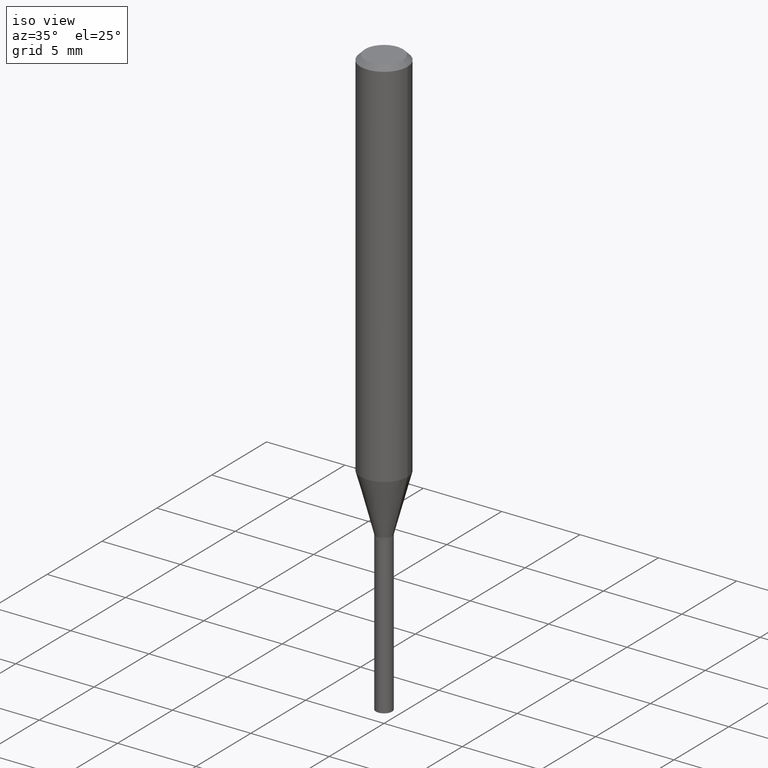
[diagram: clean part render]
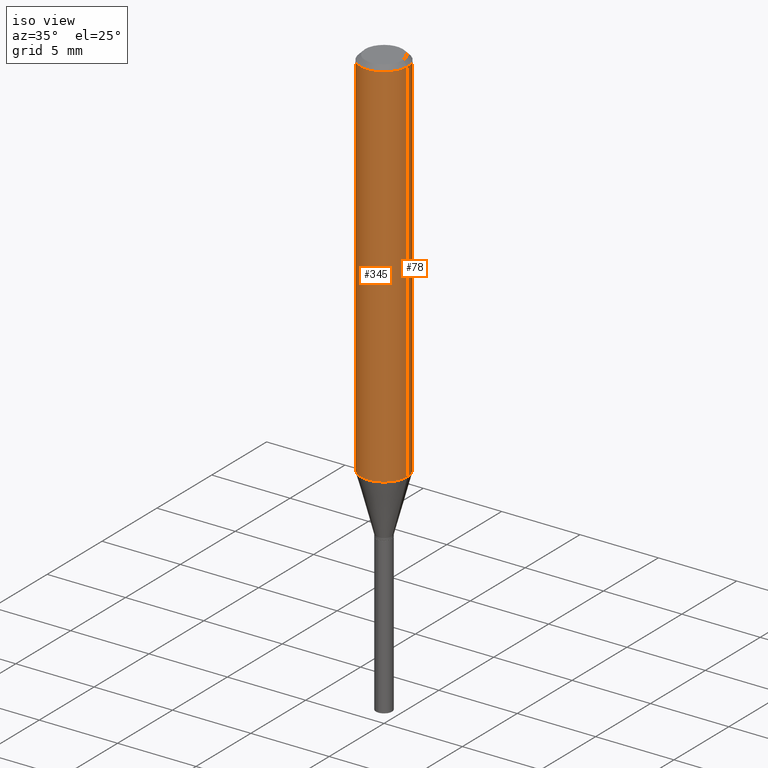
[diagram: same view with one multi-face feature highlighted, each face labeled with its STEP entity id]
A machine part, iso view. The highlighted faces form ONE feature: a constant-radius fillet chain: 2 tangent blend faces with common blend radius 1.4999 mm. The faces share edges in the B-rep.
Their STEP definitions:
[1] entity #78 (Cylinder):
#47 = VECTOR ( 'NONE', #377, 39.37007874015748143 ) ;
#48 = VERTEX_POINT ( 'NONE', #261 ) ;
#55 = AXIS2_PLACEMENT_3D ( 'NONE', #114, #197, #118 ) ;
#69 = VERTEX_POINT ( 'NONE', #449 ) ;
#77 = DIRECTION ( 'NONE',  ( 1.000000000000000000, -6.982962677686267499E-15, 0.000000000000000000 ) ) ;
#78 = ADVANCED_FACE ( 'NONE', ( #359 ), #301, .T. ) ;
#90 = DIRECTION ( 'NONE',  ( 1.000000000000000000, -6.982962677686266711E-15, 0.000000000000000000 ) ) ;
#91 = CARTESIAN_POINT ( 'NONE',  ( -0.05905000000000006771, 4.195754854663396409E-16, -2.904631170795525045E-30 ) ) ;
#114 = CARTESIAN_POINT ( 'NONE',  ( 0.000000000000000000, 0.000000000000000000, 0.000000000000000000 ) ) ;
#117 = ORIENTED_EDGE ( 'NONE', *, *, #136, .F. ) ;
#118 = DIRECTION ( 'NONE',  ( 1.000000000000000000, -6.982962677686266711E-15, 4.876176775795936353E-29 ) ) ;
#119 = CARTESIAN_POINT ( 'NONE',  ( 0.05905000000000000526, -4.535783407291119586E-16, -0.01181000000000007738 ) ) ;
#123 = AXIS2_PLACEMENT_3D ( 'NONE', #179, #210, #90 ) ;
#136 = EDGE_CURVE ( 'NONE', #221, #69, #304, .T. ) ;
#167 = ORIENTED_EDGE ( 'NONE', *, *, #250, .F. ) ;
#179 = CARTESIAN_POINT ( 'NONE',  ( 2.306411186736869099E-29, -3.292943912358867169E-15, -0.9431366210451919141 ) ) ;
#186 = ORIENTED_EDGE ( 'NONE', *, *, #381, .T. ) ;
#197 = DIRECTION ( 'NONE',  ( -2.445468806185136597E-29, 3.491481338843145583E-15, 1.000000000000000000 ) ) ;
#207 = VECTOR ( 'NONE', #248, 39.37007874015748143 ) ;
#210 = DIRECTION ( 'NONE',  ( -2.445468806185136597E-29, 3.491481338843145583E-15, 1.000000000000000000 ) ) ;
#221 = VERTEX_POINT ( 'NONE', #119 ) ;
#248 = DIRECTION ( 'NONE',  ( -2.445468806185136877E-29, 3.491481338843145188E-15, 1.000000000000000000 ) ) ;
#250 = EDGE_CURVE ( 'NONE', #437, #221, #386, .T. ) ;
#261 = CARTESIAN_POINT ( 'NONE',  ( -0.05905000000000011628, -2.873368426892526887E-15, -0.9431366210451919141 ) ) ;
#270 = DIRECTION ( 'NONE',  ( -2.445468806185136597E-29, 3.491481338843145583E-15, 1.000000000000000000 ) ) ;
#272 = CIRCLE ( 'NONE', #123, 0.05905000000000011628 ) ;
#278 = LINE ( 'NONE', #91, #207 ) ;
#283 = CARTESIAN_POINT ( 'NONE',  ( 0.05905000000000006771, -4.123439461173745257E-16, 2.879382386107503723E-30 ) ) ;
#300 = CARTESIAN_POINT ( 'NONE',  ( 2.888098660104665518E-31, -4.123439461173782112E-17, -0.01181000000000007738 ) ) ;
#301 = CYLINDRICAL_SURFACE ( 'NONE', #55, 0.05905000000000006771 ) ;
#304 = CIRCLE ( 'NONE', #370, 0.05905000000000000526 ) ;
#323 = EDGE_CURVE ( 'NONE', #437, #48, #272, .T. ) ;
#359 = FACE_OUTER_BOUND ( 'NONE', #462, .T. ) ;
#370 = AXIS2_PLACEMENT_3D ( 'NONE', #300, #270, #77 ) ;
#377 = DIRECTION ( 'NONE',  ( -2.445468806185136877E-29, 3.491481338843145188E-15, 1.000000000000000000 ) ) ;
#381 = EDGE_CURVE ( 'NONE', #48, #69, #278, .T. ) ;
#386 = LINE ( 'NONE', #283, #47 ) ;
#413 = ORIENTED_EDGE ( 'NONE', *, *, #323, .T. ) ;
#428 = CARTESIAN_POINT ( 'NONE',  ( 0.05905000000000011628, -3.705287858476242089E-15, -0.9431366210451919141 ) ) ;
#437 = VERTEX_POINT ( 'NONE', #428 ) ;
#449 = CARTESIAN_POINT ( 'NONE',  ( -0.05905000000000000526, -1.247513668018962364E-15, -0.01181000000000007738 ) ) ;
#462 = EDGE_LOOP ( 'NONE', ( #413, #186, #117, #167 ) ) ;
[2] entity #345 (Cylinder):
#8 = CARTESIAN_POINT ( 'NONE',  ( 0.000000000000000000, 0.000000000000000000, 0.000000000000000000 ) ) ;
#15 = ORIENTED_EDGE ( 'NONE', *, *, #381, .F. ) ;
#27 = CARTESIAN_POINT ( 'NONE',  ( 2.306411186736869099E-29, -3.292943912358867169E-15, -0.9431366210451919141 ) ) ;
#28 = CIRCLE ( 'NONE', #256, 0.05905000000000011628 ) ;
#47 = VECTOR ( 'NONE', #377, 39.37007874015748143 ) ;
#48 = VERTEX_POINT ( 'NONE', #261 ) ;
#65 = AXIS2_PLACEMENT_3D ( 'NONE', #8, #412, #251 ) ;
#68 = DIRECTION ( 'NONE',  ( 1.000000000000000000, -6.982962677686267499E-15, 0.000000000000000000 ) ) ;
#69 = VERTEX_POINT ( 'NONE', #449 ) ;
#80 = ORIENTED_EDGE ( 'NONE', *, *, #464, .F. ) ;
#88 = EDGE_CURVE ( 'NONE', #48, #437, #28, .T. ) ;
#91 = CARTESIAN_POINT ( 'NONE',  ( -0.05905000000000006771, 4.195754854663396409E-16, -2.904631170795525045E-30 ) ) ;
#97 = FACE_OUTER_BOUND ( 'NONE', #219, .T. ) ;
#104 = DIRECTION ( 'NONE',  ( -2.445468806185136597E-29, 3.491481338843145583E-15, 1.000000000000000000 ) ) ;
#119 = CARTESIAN_POINT ( 'NONE',  ( 0.05905000000000000526, -4.535783407291119586E-16, -0.01181000000000007738 ) ) ;
#192 = ORIENTED_EDGE ( 'NONE', *, *, #250, .T. ) ;
#194 = DIRECTION ( 'NONE',  ( -2.445468806185136597E-29, 3.491481338843145583E-15, 1.000000000000000000 ) ) ;
#207 = VECTOR ( 'NONE', #248, 39.37007874015748143 ) ;
#212 = CYLINDRICAL_SURFACE ( 'NONE', #65, 0.05905000000000006771 ) ;
#219 = EDGE_LOOP ( 'NONE', ( #15, #378, #192, #80 ) ) ;
#221 = VERTEX_POINT ( 'NONE', #119 ) ;
#233 = CIRCLE ( 'NONE', #405, 0.05905000000000000526 ) ;
#241 = DIRECTION ( 'NONE',  ( 1.000000000000000000, -6.982962677686266711E-15, 0.000000000000000000 ) ) ;
#248 = DIRECTION ( 'NONE',  ( -2.445468806185136877E-29, 3.491481338843145188E-15, 1.000000000000000000 ) ) ;
#250 = EDGE_CURVE ( 'NONE', #437, #221, #386, .T. ) ;
#251 = DIRECTION ( 'NONE',  ( 1.000000000000000000, -6.982962677686266711E-15, 4.876176775795936353E-29 ) ) ;
#256 = AXIS2_PLACEMENT_3D ( 'NONE', #27, #194, #241 ) ;
#261 = CARTESIAN_POINT ( 'NONE',  ( -0.05905000000000011628, -2.873368426892526887E-15, -0.9431366210451919141 ) ) ;
#278 = LINE ( 'NONE', #91, #207 ) ;
#283 = CARTESIAN_POINT ( 'NONE',  ( 0.05905000000000006771, -4.123439461173745257E-16, 2.879382386107503723E-30 ) ) ;
#345 = ADVANCED_FACE ( 'NONE', ( #97 ), #212, .T. ) ;
#377 = DIRECTION ( 'NONE',  ( -2.445468806185136877E-29, 3.491481338843145188E-15, 1.000000000000000000 ) ) ;
#378 = ORIENTED_EDGE ( 'NONE', *, *, #88, .T. ) ;
#381 = EDGE_CURVE ( 'NONE', #48, #69, #278, .T. ) ;
#386 = LINE ( 'NONE', #283, #47 ) ;
#405 = AXIS2_PLACEMENT_3D ( 'NONE', #465, #104, #68 ) ;
#412 = DIRECTION ( 'NONE',  ( -2.445468806185136597E-29, 3.491481338843145583E-15, 1.000000000000000000 ) ) ;
#428 = CARTESIAN_POINT ( 'NONE',  ( 0.05905000000000011628, -3.705287858476242089E-15, -0.9431366210451919141 ) ) ;
#437 = VERTEX_POINT ( 'NONE', #428 ) ;
#449 = CARTESIAN_POINT ( 'NONE',  ( -0.05905000000000000526, -1.247513668018962364E-15, -0.01181000000000007738 ) ) ;
#464 = EDGE_CURVE ( 'NONE', #69, #221, #233, .T. ) ;
#465 = CARTESIAN_POINT ( 'NONE',  ( 2.888098660104665518E-31, -4.123439461173782112E-17, -0.01181000000000007738 ) ) ;